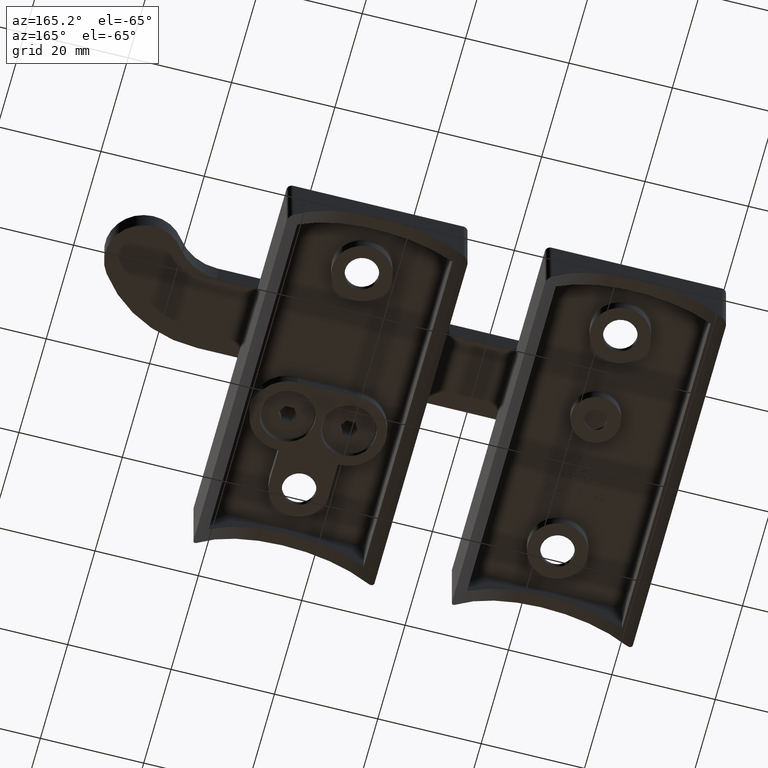
[diagram: clean part render]
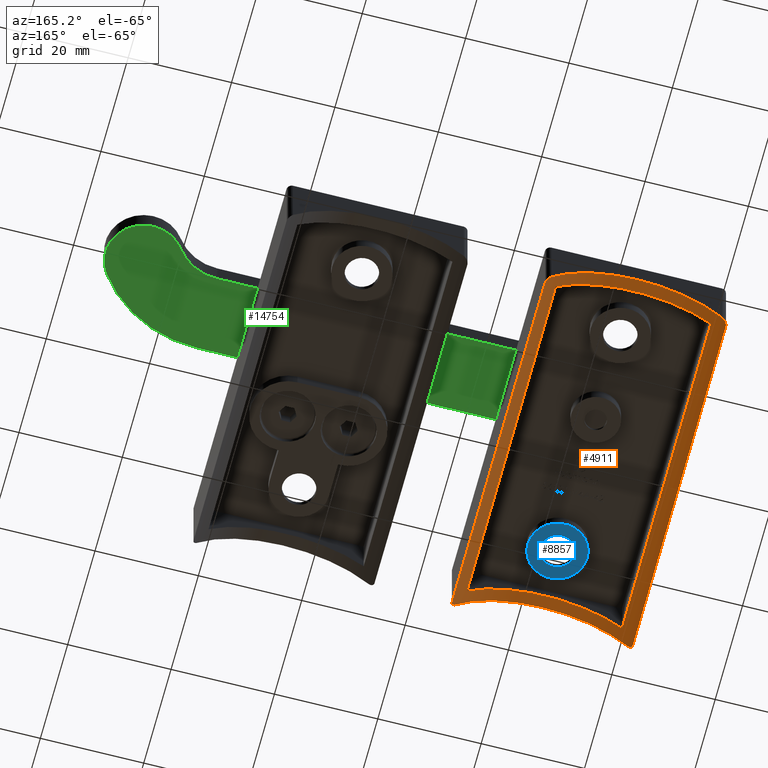
[diagram: same view with three faces highlighted in distinct colors, each labeled with its STEP entity id]
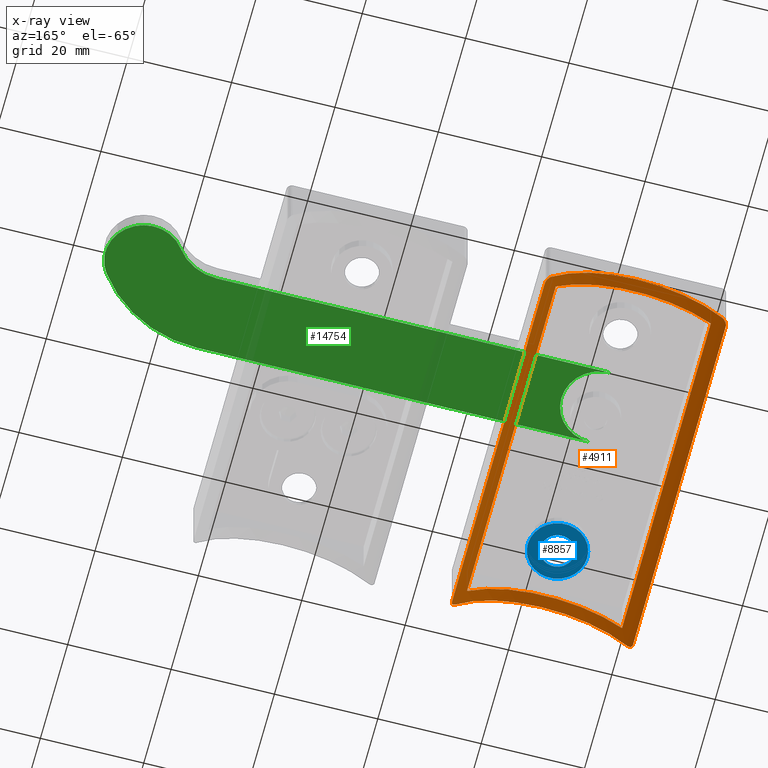
[diagram: x-ray of the same camera — body ghosted, the three highlighted faces saturated]
A machine part, auxiliary view with three faces highlighted in distinct colors.
The next image is the same camera in x-ray (body ghosted, the three faces saturated) — at least one of them is partly hidden behind the body in this view.
Their STEP definitions:

[orange] entity #4911 — the highlighted cylindrical surface (partial cylindrical patch) has radius 21.2 mm, axis along (0, 1, 0).
#9 = EDGE_CURVE ( 'NONE', #10822, #6827, #11997, .T. ) ;
#23 = CARTESIAN_POINT ( 'NONE',  ( 17.22069228036732014, 34.70374727302922224, -11.33418421288197919 ) ) ;
#56 = VERTEX_POINT ( 'NONE', #17894 ) ;
#325 = CARTESIAN_POINT ( 'NONE',  ( 17.50000000000001066, -34.09017644378980094, -11.73379759489253615 ) ) ;
#408 = ORIENTED_EDGE ( 'NONE', *, *, #7531, .F. ) ;
#897 = CARTESIAN_POINT ( 'NONE',  ( -17.48749106032254019, 34.17831192160697640, -11.71546407082079178 ) ) ;
#998 = CARTESIAN_POINT ( 'NONE',  ( -16.50000000000000000, 34.99999999999999289, -10.38872658232880042 ) ) ;
#1009 = CARTESIAN_POINT ( 'NONE',  ( -15.00000000000000178, 32.49999999999998579, -8.718678295958000035 ) ) ;
#1167 = ORIENTED_EDGE ( 'NONE', *, *, #13216, .F. ) ;
#1191 = CARTESIAN_POINT ( 'NONE',  ( -17.49999999999999645, -34.00000000000001421, -11.73379759489252194 ) ) ;
#1249 = DIRECTION ( 'NONE',  ( -0.000000000000000000, 1.000000000000000000, -0.000000000000000000 ) ) ;
#1358 = DIRECTION ( 'NONE',  ( 0.000000000000000000, -1.000000000000000000, 0.000000000000000000 ) ) ;
#1729 = ORIENTED_EDGE ( 'NONE', *, *, #13340, .F. ) ;
#1849 = AXIS2_PLACEMENT_3D ( 'NONE', #3219, #4691, #16241 ) ;
#1874 = B_SPLINE_CURVE_WITH_KNOTS ( 'NONE', 3,
 ( #11104, #6902, #897, #3873, #15431, #12606, #3993, #12480, #6660, #15623, #8096, #3931 ),
 .UNSPECIFIED., .F., .F.,
 ( 4, 2, 2, 2, 2, 4 ),
 ( 0.000000000000000000, 0.0002663928993981023877, 0.0005327857987962047754, 0.001065571597592412370, 0.001598357396388620181, 0.002131143195184827775 ),
 .UNSPECIFIED. ) ;
#1928 = VECTOR ( 'NONE', #16757, 1000.000000000000000 ) ;
#1944 = VECTOR ( 'NONE', #12738, 1000.000000000000000 ) ;
#2095 = FACE_OUTER_BOUND ( 'NONE', #14787, .T. ) ;
#2525 = ORIENTED_EDGE ( 'NONE', *, *, #7584, .T. ) ;
#2540 = CIRCLE ( 'NONE', #14996, 21.19999999999999929 ) ;
#2542 = CARTESIAN_POINT ( 'NONE',  ( 0.000000000000000000, -35.00000000000001421, -23.70000000000000284 ) ) ;
#2579 = VECTOR ( 'NONE', #1249, 1000.000000000000000 ) ;
#2650 = VERTEX_POINT ( 'NONE', #5587 ) ;
#2737 = CARTESIAN_POINT ( 'NONE',  ( -17.48752725458700397, -34.17814461063495912, -11.71551682628386892 ) ) ;
#2956 = DIRECTION ( 'NONE',  ( 0.000000000000000000, 0.000000000000000000, 1.000000000000000000 ) ) ;
#3036 = ORIENTED_EDGE ( 'NONE', *, *, #16693, .T. ) ;
#3158 = EDGE_CURVE ( 'NONE', #10466, #56, #5801, .T. ) ;
#3169 = B_SPLINE_CURVE_WITH_KNOTS ( 'NONE', 3,
 ( #6033, #325, #9121, #3176, #16196, #10454, #4832, #7477, #10584, #17784, #13440, #13310 ),
 .UNSPECIFIED., .F., .F.,
 ( 4, 2, 2, 2, 2, 4 ),
 ( 0.000000000000000000, 0.0002663928993980977256, 0.0005327857987961954513, 0.001065571597592408900, 0.001598357396388622132, 0.002131143195184835581 ),
 .UNSPECIFIED. ) ;
#3176 = CARTESIAN_POINT ( 'NONE',  ( 17.44440010715757339, -34.33917867445477157, -11.65282813586321353 ) ) ;
#3197 = CARTESIAN_POINT ( 'NONE',  ( -16.49999999999999645, -35.00000000000001421, -10.38872658232879509 ) ) ;
#3219 = CARTESIAN_POINT ( 'NONE',  ( 0.000000000000000000, 34.99999999999999289, -23.70000000000000284 ) ) ;
#3330 = CARTESIAN_POINT ( 'NONE',  ( 17.41399115309406298, 34.41231109806862065, -11.60881969456891838 ) ) ;
#3873 = CARTESIAN_POINT ( 'NONE',  ( -17.44440010715756628, 34.33917867445475736, -11.65282813586320820 ) ) ;
#3931 = CARTESIAN_POINT ( 'NONE',  ( -16.50000000000000000, 34.99999999999999289, -10.38872658232880042 ) ) ;
#3993 = CARTESIAN_POINT ( 'NONE',  ( -17.22070841866367985, 34.70363382025576016, -11.33421729290531133 ) ) ;
#4130 = CARTESIAN_POINT ( 'NONE',  ( -17.03192859465321973, -34.85540023232836404, -11.07545838286893769 ) ) ;
#4333 = AXIS2_PLACEMENT_3D ( 'NONE', #11767, #14838, #2956 ) ;
#4476 = CARTESIAN_POINT ( 'NONE',  ( 16.50000000000000000, 34.99999999999999289, -10.38872658232880042 ) ) ;
#4490 = VERTEX_POINT ( 'NONE', #6572 ) ;
#4691 = DIRECTION ( 'NONE',  ( 0.000000000000000000, 1.000000000000000000, 0.000000000000000000 ) ) ;
#4832 = CARTESIAN_POINT ( 'NONE',  ( 17.22070841866369051, -34.70363382025578858, -11.33421729290531665 ) ) ;
#4911 = ADVANCED_FACE ( 'NONE', ( #2095, #16178 ), #16429, .F. ) ;
#4919 = CARTESIAN_POINT ( 'NONE',  ( 17.50000000000000000, 33.99999999999998579, -11.73379759489252550 ) ) ;
#5023 = ORIENTED_EDGE ( 'NONE', *, *, #3158, .F. ) ;
#5467 = CARTESIAN_POINT ( 'NONE',  ( -17.49999999999999645, -34.00000000000001421, -11.73379759489252194 ) ) ;
#5497 = DIRECTION ( 'NONE',  ( 0.000000000000000000, 0.000000000000000000, -1.000000000000000000 ) ) ;
#5498 = CARTESIAN_POINT ( 'NONE',  ( 16.50000000000000000, 34.99999999999999289, -10.38872658232880042 ) ) ;
#5587 = CARTESIAN_POINT ( 'NONE',  ( 15.00000000000000000, -32.49999999999999289, -8.718678295957998259 ) ) ;
#5779 = LINE ( 'NONE', #15461, #1928 ) ;
#5801 = LINE ( 'NONE', #18657, #1944 ) ;
#6033 = CARTESIAN_POINT ( 'NONE',  ( 17.50000000000000711, -34.00000000000001421, -11.73379759489253615 ) ) ;
#6572 = CARTESIAN_POINT ( 'NONE',  ( 15.00000000000000000, 32.49999999999998579, -8.718678295957998259 ) ) ;
#6660 = CARTESIAN_POINT ( 'NONE',  ( -16.93084168342352669, 34.90927160468773138, -10.94004109033134675 ) ) ;
#6827 = VERTEX_POINT ( 'NONE', #5498 ) ;
#6902 = CARTESIAN_POINT ( 'NONE',  ( -17.50000000000000000, 34.09017644378977963, -11.73379759489252372 ) ) ;
#6922 = DIRECTION ( 'NONE',  ( 0.000000000000000000, 0.000000000000000000, 1.000000000000000000 ) ) ;
#7043 = CARTESIAN_POINT ( 'NONE',  ( -17.22069228036732369, -34.70374727302925777, -11.33418421288197386 ) ) ;
#7165 = CARTESIAN_POINT ( 'NONE',  ( -16.49999999999999645, -35.00000000000001421, -10.38872658232879509 ) ) ;
#7371 = CARTESIAN_POINT ( 'NONE',  ( -17.50000000000000000, 33.99999999999998579, -11.73379759489252550 ) ) ;
#7477 = CARTESIAN_POINT ( 'NONE',  ( 17.03292304541700375, -34.85470123751163385, -11.07681050888410823 ) ) ;
#7531 = EDGE_CURVE ( 'NONE', #14357, #10438, #9929, .T. ) ;
#7584 = EDGE_CURVE ( 'NONE', #10466, #10438, #3169, .T. ) ;
#7921 = ORIENTED_EDGE ( 'NONE', *, *, #9, .T. ) ;
#8096 = CARTESIAN_POINT ( 'NONE',  ( -16.61180494981223177, 34.99999999999998579, -10.52731450055552465 ) ) ;
#8359 = CARTESIAN_POINT ( 'NONE',  ( -17.30907362778851422, -34.60573999613386320, -11.45864033770238244 ) ) ;
#8522 = VERTEX_POINT ( 'NONE', #15535 ) ;
#8607 = AXIS2_PLACEMENT_3D ( 'NONE', #10103, #18749, #5497 ) ;
#8698 = LINE ( 'NONE', #14251, #9838 ) ;
#8699 = CARTESIAN_POINT ( 'NONE',  ( 17.03192859465321973, 34.85540023232833562, -11.07545838286893947 ) ) ;
#8820 = CARTESIAN_POINT ( 'NONE',  ( 16.72009016582341800, 34.98173907737944432, -10.66511639187243077 ) ) ;
#9121 = CARTESIAN_POINT ( 'NONE',  ( 17.48749106032254730, -34.17831192160700482, -11.71546407082080421 ) ) ;
#9312 = ORIENTED_EDGE ( 'NONE', *, *, #14319, .T. ) ;
#9419 = AXIS2_PLACEMENT_3D ( 'NONE', #2542, #12699, #6922 ) ;
#9738 = B_SPLINE_CURVE_WITH_KNOTS ( 'NONE', 3,
 ( #4476, #15985, #8820, #17445, #8699, #23, #10168, #3330, #12013, #13467, #13336, #4919 ),
 .UNSPECIFIED., .F., .F.,
 ( 4, 2, 2, 2, 2, 4 ),
 ( 0.000000000000000000, 0.0005269720002601444540, 0.001053944000520288908, 0.001580916000780433362, 0.001844402000910505806, 0.002107888001040578684 ),
 .UNSPECIFIED. ) ;
#9838 = VECTOR ( 'NONE', #1358, 1000.000000000000000 ) ;
#9929 = CIRCLE ( 'NONE', #9419, 21.19999999999999929 ) ;
#10103 = CARTESIAN_POINT ( 'NONE',  ( 0.000000000000000000, -32.49999999999999289, -23.70000000000000284 ) ) ;
#10168 = CARTESIAN_POINT ( 'NONE',  ( 17.30907362778851422, 34.60573999613383478, -11.45864033770238244 ) ) ;
#10391 = EDGE_CURVE ( 'NONE', #14318, #17882, #5779, .T. ) ;
#10438 = VERTEX_POINT ( 'NONE', #12394 ) ;
#10454 = CARTESIAN_POINT ( 'NONE',  ( 17.30911555382638412, -34.60567274659629078, -11.45870007737560847 ) ) ;
#10466 = VERTEX_POINT ( 'NONE', #15338 ) ;
#10539 = ORIENTED_EDGE ( 'NONE', *, *, #13344, .F. ) ;
#10584 = CARTESIAN_POINT ( 'NONE',  ( 16.93084168342353024, -34.90927160468773849, -10.94004109033135208 ) ) ;
#10758 = CIRCLE ( 'NONE', #8607, 21.19999999999999929 ) ;
#10822 = VERTEX_POINT ( 'NONE', #998 ) ;
#11104 = CARTESIAN_POINT ( 'NONE',  ( -17.50000000000000000, 33.99999999999998579, -11.73379759489252550 ) ) ;
#11406 = DIRECTION ( 'NONE',  ( 0.000000000000000000, 1.000000000000000000, -0.000000000000000000 ) ) ;
#11463 = ORIENTED_EDGE ( 'NONE', *, *, #10391, .F. ) ;
#11767 = CARTESIAN_POINT ( 'NONE',  ( 0.000000000000000000, -35.00000000000001421, -23.70000000000000284 ) ) ;
#11997 = CIRCLE ( 'NONE', #1849, 21.19999999999999929 ) ;
#12013 = CARTESIAN_POINT ( 'NONE',  ( 17.44441559168094713, 34.33915302009615544, -11.65285049956932006 ) ) ;
#12394 = CARTESIAN_POINT ( 'NONE',  ( 16.50000000000000711, -35.00000000000001421, -10.38872658232880752 ) ) ;
#12480 = CARTESIAN_POINT ( 'NONE',  ( -17.03292304541700020, 34.85470123751161964, -11.07681050888410290 ) ) ;
#12606 = CARTESIAN_POINT ( 'NONE',  ( -17.30911555382637346, 34.60567274659626946, -11.45870007737560314 ) ) ;
#12699 = DIRECTION ( 'NONE',  ( 0.000000000000000000, 1.000000000000000000, 0.000000000000000000 ) ) ;
#12738 = DIRECTION ( 'NONE',  ( -0.000000000000000000, 1.000000000000000000, -0.000000000000000000 ) ) ;
#12812 = CARTESIAN_POINT ( 'NONE',  ( -16.72009016582341090, -34.98173907737947275, -10.66511639187242722 ) ) ;
#13216 = EDGE_CURVE ( 'NONE', #4490, #2650, #8698, .T. ) ;
#13310 = CARTESIAN_POINT ( 'NONE',  ( 16.50000000000000711, -35.00000000000001421, -10.38872658232880752 ) ) ;
#13336 = CARTESIAN_POINT ( 'NONE',  ( 17.50000000000000711, 34.09015482311177436, -11.73379759489253438 ) ) ;
#13340 = EDGE_CURVE ( 'NONE', #2650, #8522, #10758, .T. ) ;
#13344 = EDGE_CURVE ( 'NONE', #8522, #17952, #14182, .T. ) ;
#13440 = CARTESIAN_POINT ( 'NONE',  ( 16.61180494981223887, -35.00000000000002132, -10.52731450055553175 ) ) ;
#13467 = CARTESIAN_POINT ( 'NONE',  ( 17.48752725458701107, 34.17814461063493070, -11.71551682628387603 ) ) ;
#14099 = EDGE_CURVE ( 'NONE', #14357, #17882, #18267, .T. ) ;
#14175 = CARTESIAN_POINT ( 'NONE',  ( -17.44441559168094003, -34.33915302009619097, -11.65285049956932006 ) ) ;
#14182 = LINE ( 'NONE', #18581, #2579 ) ;
#14251 = CARTESIAN_POINT ( 'NONE',  ( 15.00000000000000000, -35.00000000000001421, -8.718678295957998259 ) ) ;
#14318 = VERTEX_POINT ( 'NONE', #7371 ) ;
#14319 = EDGE_CURVE ( 'NONE', #6827, #56, #9738, .T. ) ;
#14357 = VERTEX_POINT ( 'NONE', #3197 ) ;
#14359 = DIRECTION ( 'NONE',  ( 0.000000000000000000, 0.000000000000000000, 1.000000000000000000 ) ) ;
#14369 = ORIENTED_EDGE ( 'NONE', *, *, #14099, .T. ) ;
#14787 = EDGE_LOOP ( 'NONE', ( #14369, #11463, #3036, #7921, #9312, #5023, #2525, #408 ) ) ;
#14838 = DIRECTION ( 'NONE',  ( -0.000000000000000000, 1.000000000000000000, -0.000000000000000000 ) ) ;
#14996 = AXIS2_PLACEMENT_3D ( 'NONE', #16917, #11406, #14359 ) ;
#15338 = CARTESIAN_POINT ( 'NONE',  ( 17.50000000000000711, -34.00000000000001421, -11.73379759489253615 ) ) ;
#15431 = CARTESIAN_POINT ( 'NONE',  ( -17.41399355130321425, 34.41230165174233235, -11.60882326413141108 ) ) ;
#15461 = CARTESIAN_POINT ( 'NONE',  ( -17.49999999999999645, -35.00000000000001421, -11.73379759489252194 ) ) ;
#15535 = CARTESIAN_POINT ( 'NONE',  ( -15.00000000000000178, -32.49999999999999289, -8.718678295958000035 ) ) ;
#15623 = CARTESIAN_POINT ( 'NONE',  ( -16.72026873868559704, 34.98177445985544409, -10.66533219480767691 ) ) ;
#15727 = EDGE_CURVE ( 'NONE', #17952, #4490, #2540, .T. ) ;
#15760 = CARTESIAN_POINT ( 'NONE',  ( -17.50000000000000000, -34.09015482311180278, -11.73379759489252017 ) ) ;
#15985 = CARTESIAN_POINT ( 'NONE',  ( 16.61191229368238709, 34.99999999999999289, -10.52744755873875704 ) ) ;
#16178 = FACE_BOUND ( 'NONE', #16203, .T. ) ;
#16196 = CARTESIAN_POINT ( 'NONE',  ( 17.41399355130321780, -34.41230165174234656, -11.60882326413141818 ) ) ;
#16203 = EDGE_LOOP ( 'NONE', ( #1729, #1167, #16593, #10539 ) ) ;
#16241 = DIRECTION ( 'NONE',  ( 0.000000000000000000, 0.000000000000000000, 1.000000000000000000 ) ) ;
#16429 = CYLINDRICAL_SURFACE ( 'NONE', #4333, 21.19999999999999929 ) ;
#16593 = ORIENTED_EDGE ( 'NONE', *, *, #15727, .F. ) ;
#16693 = EDGE_CURVE ( 'NONE', #14318, #10822, #1874, .T. ) ;
#16757 = DIRECTION ( 'NONE',  ( 0.000000000000000000, -1.000000000000000000, 0.000000000000000000 ) ) ;
#16917 = CARTESIAN_POINT ( 'NONE',  ( 0.000000000000000000, 32.49999999999998579, -23.70000000000000284 ) ) ;
#17113 = CARTESIAN_POINT ( 'NONE',  ( -16.92946103522133328, -34.90984312734266126, -10.93822289461141928 ) ) ;
#17304 = CARTESIAN_POINT ( 'NONE',  ( -16.61191229368237643, -35.00000000000001421, -10.52744755873875349 ) ) ;
#17445 = CARTESIAN_POINT ( 'NONE',  ( 16.92946103522133328, 34.90984312734262573, -10.93822289461141928 ) ) ;
#17784 = CARTESIAN_POINT ( 'NONE',  ( 16.72026873868559704, -34.98177445985547251, -10.66533219480768757 ) ) ;
#17882 = VERTEX_POINT ( 'NONE', #1191 ) ;
#17894 = CARTESIAN_POINT ( 'NONE',  ( 17.50000000000000000, 33.99999999999998579, -11.73379759489252550 ) ) ;
#17952 = VERTEX_POINT ( 'NONE', #1009 ) ;
#18267 = B_SPLINE_CURVE_WITH_KNOTS ( 'NONE', 3,
 ( #7165, #17304, #12812, #17113, #4130, #7043, #8359, #18665, #14175, #2737, #15760, #5467 ),
 .UNSPECIFIED., .F., .F.,
 ( 4, 2, 2, 2, 2, 4 ),
 ( 0.000000000000000000, 0.0005269720002601466224, 0.001053944000520293245, 0.001580916000780439867, 0.001844402000910509709, 0.002107888001040579551 ),
 .UNSPECIFIED. ) ;
#18581 = CARTESIAN_POINT ( 'NONE',  ( -15.00000000000000178, -35.00000000000001421, -8.718678295958000035 ) ) ;
#18657 = CARTESIAN_POINT ( 'NONE',  ( 17.50000000000000711, -35.00000000000001421, -11.73379759489253615 ) ) ;
#18665 = CARTESIAN_POINT ( 'NONE',  ( -17.41399115309405587, -34.41231109806864197, -11.60881969456891305 ) ) ;
#18749 = DIRECTION ( 'NONE',  ( 0.000000000000000000, -1.000000000000000000, 0.000000000000000000 ) ) ;

[blue] entity #8857 — the highlighted planar face has unit normal (0, 0, 1).
#489 = AXIS2_PLACEMENT_3D ( 'NONE', #12258, #13714, #6499 ) ;
#591 = AXIS2_PLACEMENT_3D ( 'NONE', #9852, #5485, #1240 ) ;
#1240 = DIRECTION ( 'NONE',  ( -1.000000000000000000, 0.000000000000000000, 0.000000000000000000 ) ) ;
#1926 = PLANE ( 'NONE',  #489 ) ;
#2183 = DIRECTION ( 'NONE',  ( 1.000000000000000000, 0.000000000000000000, 0.000000000000000000 ) ) ;
#2638 = FACE_OUTER_BOUND ( 'NONE', #14027, .T. ) ;
#3320 = FACE_BOUND ( 'NONE', #3494, .T. ) ;
#3494 = EDGE_LOOP ( 'NONE', ( #15151 ) ) ;
#3585 = DIRECTION ( 'NONE',  ( -0.000000000000000000, 0.000000000000000000, 1.000000000000000000 ) ) ;
#3915 = AXIS2_PLACEMENT_3D ( 'NONE', #13468, #3585, #2183 ) ;
#5485 = DIRECTION ( 'NONE',  ( 0.000000000000000000, 0.000000000000000000, -1.000000000000000000 ) ) ;
#5677 = CARTESIAN_POINT ( 'NONE',  ( -5.750000000000000888, -23.00000000000000000, -2.500000000000000000 ) ) ;
#6039 = VERTEX_POINT ( 'NONE', #8639 ) ;
#6499 = DIRECTION ( 'NONE',  ( 1.000000000000000000, 0.000000000000000000, 0.000000000000000000 ) ) ;
#8485 = EDGE_CURVE ( 'NONE', #17639, #17639, #12865, .T. ) ;
#8639 = CARTESIAN_POINT ( 'NONE',  ( 3.250000000000007105, -23.00000000000000000, -2.500000000000000000 ) ) ;
#8857 = ADVANCED_FACE ( 'NONE', ( #3320, #2638 ), #1926, .F. ) ;
#9852 = CARTESIAN_POINT ( 'NONE',  ( 0.000000000000000000, -23.00000000000000000, -2.500000000000000000 ) ) ;
#10247 = CIRCLE ( 'NONE', #3915, 3.250000000000007105 ) ;
#12258 = CARTESIAN_POINT ( 'NONE',  ( 0.000000000000000000, 0.000000000000000000, -2.500000000000000000 ) ) ;
#12865 = CIRCLE ( 'NONE', #591, 5.750000000000000888 ) ;
#13460 = ORIENTED_EDGE ( 'NONE', *, *, #8485, .T. ) ;
#13468 = CARTESIAN_POINT ( 'NONE',  ( 0.000000000000000000, -23.00000000000000000, -2.500000000000000000 ) ) ;
#13714 = DIRECTION ( 'NONE',  ( -0.000000000000000000, 0.000000000000000000, 1.000000000000000000 ) ) ;
#14027 = EDGE_LOOP ( 'NONE', ( #13460 ) ) ;
#15151 = ORIENTED_EDGE ( 'NONE', *, *, #16071, .T. ) ;
#16071 = EDGE_CURVE ( 'NONE', #6039, #6039, #10247, .T. ) ;
#17639 = VERTEX_POINT ( 'NONE', #5677 ) ;

[green] entity #14754 — the highlighted planar face has unit normal (0, -0, 1).
#565 = CARTESIAN_POINT ( 'NONE',  ( 45.09546788749680957, -7.806255641895631925E-15, -2.250000000000000000 ) ) ;
#582 = EDGE_CURVE ( 'NONE', #8246, #2450, #6976, .T. ) ;
#597 = VECTOR ( 'NONE', #2204, 1000.000000000000000 ) ;
#806 = CARTESIAN_POINT ( 'NONE',  ( -30.85292932518222031, -7.399999999999980815, -2.250000000000000000 ) ) ;
#1061 = ORIENTED_EDGE ( 'NONE', *, *, #14263, .F. ) ;
#1582 = DIRECTION ( 'NONE',  ( 2.821186441973490019E-37, -1.128474576789396008E-36, 1.000000000000000000 ) ) ;
#1601 = AXIS2_PLACEMENT_3D ( 'NONE', #565, #6270, #16436 ) ;
#1653 = CIRCLE ( 'NONE', #17481, 10.02235871604429818 ) ;
#1660 = VERTEX_POINT ( 'NONE', #7153 ) ;
#1962 = EDGE_CURVE ( 'NONE', #2450, #1660, #6465, .T. ) ;
#2001 = VERTEX_POINT ( 'NONE', #806 ) ;
#2059 = CARTESIAN_POINT ( 'NONE',  ( -30.85292932518218478, -17.42235871604427189, -2.250000000000000000 ) ) ;
#2079 = CARTESIAN_POINT ( 'NONE',  ( -30.85292932518222031, -7.399999999999973710, -2.250000000000000000 ) ) ;
#2128 = CARTESIAN_POINT ( 'NONE',  ( 45.09546788749680957, -7.400000000000008349, -2.250000000000000000 ) ) ;
#2204 = DIRECTION ( 'NONE',  ( 1.000000000000000000, -1.941469482826853241E-16, 2.821186441973494195E-37 ) ) ;
#2450 = VERTEX_POINT ( 'NONE', #4917 ) ;
#2582 = CIRCLE ( 'NONE', #10569, 7.399999999999996803 ) ;
#3032 = DIRECTION ( 'NONE',  ( 1.000000000000000000, 0.000000000000000000, 0.000000000000000000 ) ) ;
#3858 = CARTESIAN_POINT ( 'NONE',  ( -30.86453211250304562, -17.39999999999993818, -2.250000000000000000 ) ) ;
#4062 = ORIENTED_EDGE ( 'NONE', *, *, #11519, .F. ) ;
#4409 = EDGE_CURVE ( 'NONE', #5421, #2001, #1653, .T. ) ;
#4917 = CARTESIAN_POINT ( 'NONE',  ( -30.86453211250306694, 7.400000000000005684, -2.250000000000000000 ) ) ;
#4994 = DIRECTION ( 'NONE',  ( -2.821186441973490019E-37, 1.128474576789396008E-36, -1.000000000000000000 ) ) ;
#5066 = DIRECTION ( 'NONE',  ( 1.000000000000000000, 0.000000000000000000, 0.000000000000000000 ) ) ;
#5093 = FACE_OUTER_BOUND ( 'NONE', #17422, .T. ) ;
#5421 = VERTEX_POINT ( 'NONE', #12706 ) ;
#5921 = DIRECTION ( 'NONE',  ( -2.821186441973490019E-37, 1.128474576789396008E-36, -1.000000000000000000 ) ) ;
#6270 = DIRECTION ( 'NONE',  ( -2.350988701644578357E-37, -1.128474576789396008E-36, 1.000000000000000000 ) ) ;
#6373 = CARTESIAN_POINT ( 'NONE',  ( 45.09546788749680246, 7.399999999999985256, -2.250000000000000000 ) ) ;
#6465 = CIRCLE ( 'NONE', #10470, 24.79999999999996163 ) ;
#6976 = LINE ( 'NONE', #6373, #17230 ) ;
#7153 = CARTESIAN_POINT ( 'NONE',  ( -51.14770494122973332, -3.129999999999974136, -2.250000000000000000 ) ) ;
#7258 = EDGE_CURVE ( 'NONE', #1660, #5421, #17881, .T. ) ;
#7856 = ORIENTED_EDGE ( 'NONE', *, *, #1962, .F. ) ;
#8246 = VERTEX_POINT ( 'NONE', #16380 ) ;
#10254 = CARTESIAN_POINT ( 'NONE',  ( -45.09546788749673141, -7.387983870967704370, -2.250000000000000000 ) ) ;
#10470 = AXIS2_PLACEMENT_3D ( 'NONE', #3858, #13739, #5066 ) ;
#10569 = AXIS2_PLACEMENT_3D ( 'NONE', #14641, #5921, #16103 ) ;
#11519 = EDGE_CURVE ( 'NONE', #2001, #13064, #12838, .T. ) ;
#12202 = ORIENTED_EDGE ( 'NONE', *, *, #7258, .F. ) ;
#12325 = DIRECTION ( 'NONE',  ( -1.000000000000000000, 0.000000000000000000, 0.000000000000000000 ) ) ;
#12706 = CARTESIAN_POINT ( 'NONE',  ( -39.04606969297623209, -11.64999999999996305, -2.250000000000000000 ) ) ;
#12838 = LINE ( 'NONE', #2079, #597 ) ;
#13064 = VERTEX_POINT ( 'NONE', #2128 ) ;
#13739 = DIRECTION ( 'NONE',  ( 2.821186441973490019E-37, -1.128474576789396008E-36, 1.000000000000000000 ) ) ;
#14263 = EDGE_CURVE ( 'NONE', #13064, #8246, #2582, .T. ) ;
#14641 = CARTESIAN_POINT ( 'NONE',  ( 45.09546788749680957, -7.806255641895631925E-15, -2.250000000000000000 ) ) ;
#14754 = ADVANCED_FACE ( 'NONE', ( #5093 ), #18007, .F. ) ;
#15200 = DIRECTION ( 'NONE',  ( -1.000000000000000000, 2.055359568692898760E-16, -2.350988701644578357E-37 ) ) ;
#16103 = DIRECTION ( 'NONE',  ( -1.000000000000000000, 0.000000000000000000, 0.000000000000000000 ) ) ;
#16380 = CARTESIAN_POINT ( 'NONE',  ( 45.09546788749680957, 7.399999999999987033, -2.250000000000000000 ) ) ;
#16436 = DIRECTION ( 'NONE',  ( 1.000000000000000000, -4.283082511115098947E-43, 2.350988701644578357E-37 ) ) ;
#16493 = ORIENTED_EDGE ( 'NONE', *, *, #4409, .F. ) ;
#17230 = VECTOR ( 'NONE', #15200, 1000.000000000000000 ) ;
#17422 = EDGE_LOOP ( 'NONE', ( #1061, #4062, #16493, #12202, #7856, #18353 ) ) ;
#17481 = AXIS2_PLACEMENT_3D ( 'NONE', #2059, #4994, #12325 ) ;
#17881 = CIRCLE ( 'NONE', #18575, 7.399999999999989697 ) ;
#18007 = PLANE ( 'NONE',  #1601 ) ;
#18353 = ORIENTED_EDGE ( 'NONE', *, *, #582, .F. ) ;
#18575 = AXIS2_PLACEMENT_3D ( 'NONE', #10254, #1582, #3032 ) ;